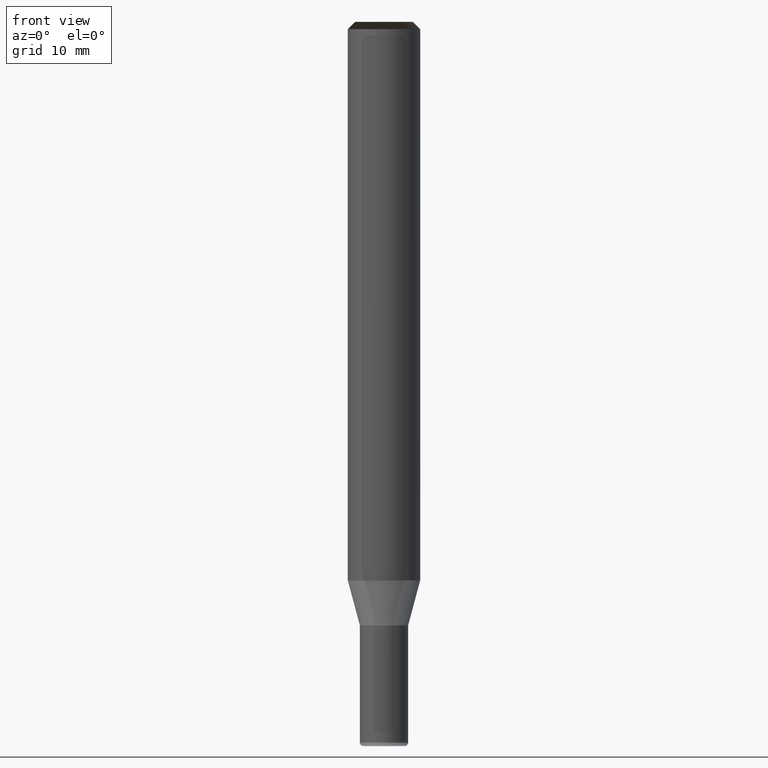
[diagram: clean part render]
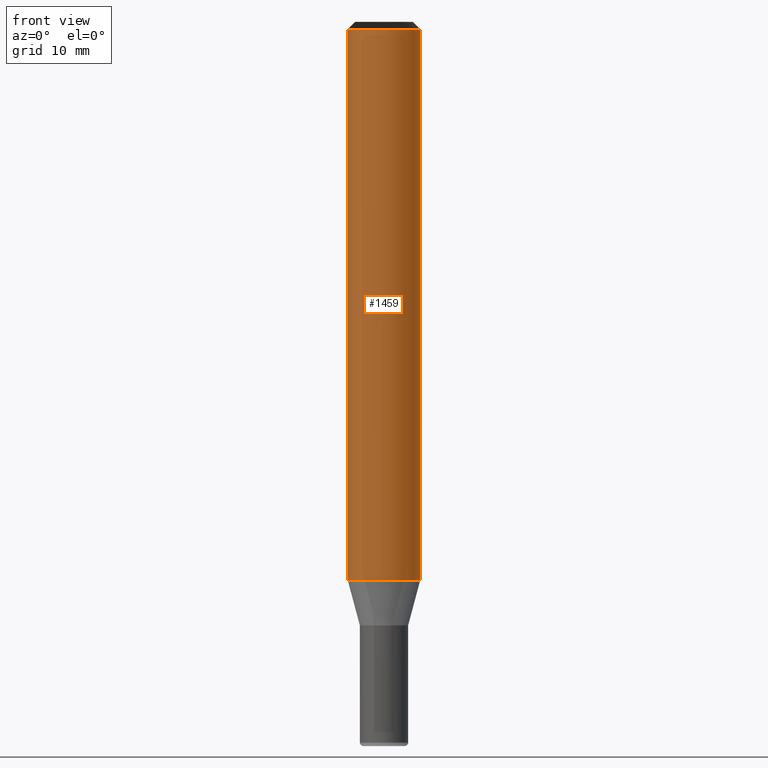
[diagram: same view with one face highlighted and labeled with its STEP entity id]
A machine part, front view. The second image highlights one B-rep face of the part: STEP entity #1459.
In plain terms, the highlighted face is a freeform B-spline surface patch.
Its self-contained STEP definition (entity closure, byte-faithful):
#1130=CARTESIAN_POINT('',(3.0,0.0,0.0));
#1134=CARTESIAN_POINT('',(-3.0,0.0,0.0));
#1135=CARTESIAN_POINT('',(3.0,0.0,45.667949192431));
#1139=CARTESIAN_POINT('',(-3.0,0.0,45.667949192431));
#1146=CARTESIAN_POINT('',(-3.0,-3.0,0.0));
#1147=CARTESIAN_POINT('',(0.0,-3.0,0.0));
#1148=CARTESIAN_POINT('',(3.0,-3.0,0.0));
#1149=CARTESIAN_POINT('',(-3.0,-3.0,45.667949192431));
#1150=CARTESIAN_POINT('',(0.0,-3.0,45.667949192431));
#1151=CARTESIAN_POINT('',(3.0,-3.0,45.667949192431));
#1440=(
BOUNDED_SURFACE()
B_SPLINE_SURFACE(1,2,(
(#1134,#1146,#1147,#1148,#1130),
(#1139,#1149,#1150,#1151,#1135)
), .UNSPECIFIED.,.F.,.F.,.F.)
B_SPLINE_SURFACE_WITH_KNOTS((2,2),(3,2,3),(
0.0,1.0),(
0.0,0.5,1.0), .UNSPECIFIED.)
GEOMETRIC_REPRESENTATION_ITEM()
RATIONAL_B_SPLINE_SURFACE(((1.0,0.707106781187,1.0,0.707106781187,1.0),
(1.0,0.707106781187,1.0,0.707106781187,1.0)
))
REPRESENTATION_ITEM('')
SURFACE()
);
#1441=(
BOUNDED_CURVE()
B_SPLINE_CURVE(1,(#1139,#1134),.UNSPECIFIED.,.F.,.F.)
B_SPLINE_CURVE_WITH_KNOTS((2,2),
(0.0,1.0),.UNSPECIFIED.)
CURVE()
GEOMETRIC_REPRESENTATION_ITEM()
RATIONAL_B_SPLINE_CURVE((1.0,1.0))
REPRESENTATION_ITEM('')
);
#1442=(
BOUNDED_CURVE()
B_SPLINE_CURVE(2,(#1134,#1146,#1147,#1148,#1130),.UNSPECIFIED.,.F.,.F.)
B_SPLINE_CURVE_WITH_KNOTS((3,2,3),
(0.0,0.5,1.0),.UNSPECIFIED.)
CURVE()
GEOMETRIC_REPRESENTATION_ITEM()
RATIONAL_B_SPLINE_CURVE((1.0,0.707106781187,1.0,0.707106781187,1.0))
REPRESENTATION_ITEM('')
);
#1443=(
BOUNDED_CURVE()
B_SPLINE_CURVE(1,(#1130,#1135),.UNSPECIFIED.,.F.,.F.)
B_SPLINE_CURVE_WITH_KNOTS((2,2),
(0.0,1.0),.UNSPECIFIED.)
CURVE()
GEOMETRIC_REPRESENTATION_ITEM()
RATIONAL_B_SPLINE_CURVE((1.0,1.0))
REPRESENTATION_ITEM('')
);
#1444=(
BOUNDED_CURVE()
B_SPLINE_CURVE(2,(#1135,#1151,#1150,#1149,#1139),.UNSPECIFIED.,.F.,.F.)
B_SPLINE_CURVE_WITH_KNOTS((3,2,3),
(0.0,0.5,1.0),.UNSPECIFIED.)
CURVE()
GEOMETRIC_REPRESENTATION_ITEM()
RATIONAL_B_SPLINE_CURVE((1.0,0.707106781187,1.0,0.707106781187,1.0))
REPRESENTATION_ITEM('')
);
#1445=VERTEX_POINT('',#1130);
#1446=VERTEX_POINT('',#1134);
#1447=VERTEX_POINT('',#1135);
#1448=VERTEX_POINT('',#1139);
#1449=EDGE_CURVE('',#1448,#1446,#1441,.T.);
#1450=EDGE_CURVE('',#1446,#1445,#1442,.T.);
#1451=EDGE_CURVE('',#1445,#1447,#1443,.T.);
#1452=EDGE_CURVE('',#1447,#1448,#1444,.T.);
#1453=ORIENTED_EDGE('',*,*,#1449,.T.);
#1454=ORIENTED_EDGE('',*,*,#1450,.T.);
#1455=ORIENTED_EDGE('',*,*,#1451,.T.);
#1456=ORIENTED_EDGE('',*,*,#1452,.T.);
#1457=EDGE_LOOP('',(#1453,#1454,#1455,#1456));
#1458=FACE_OUTER_BOUND('',#1457,.T.);
#1459=ADVANCED_FACE('',(#1458),#1440,.T.);